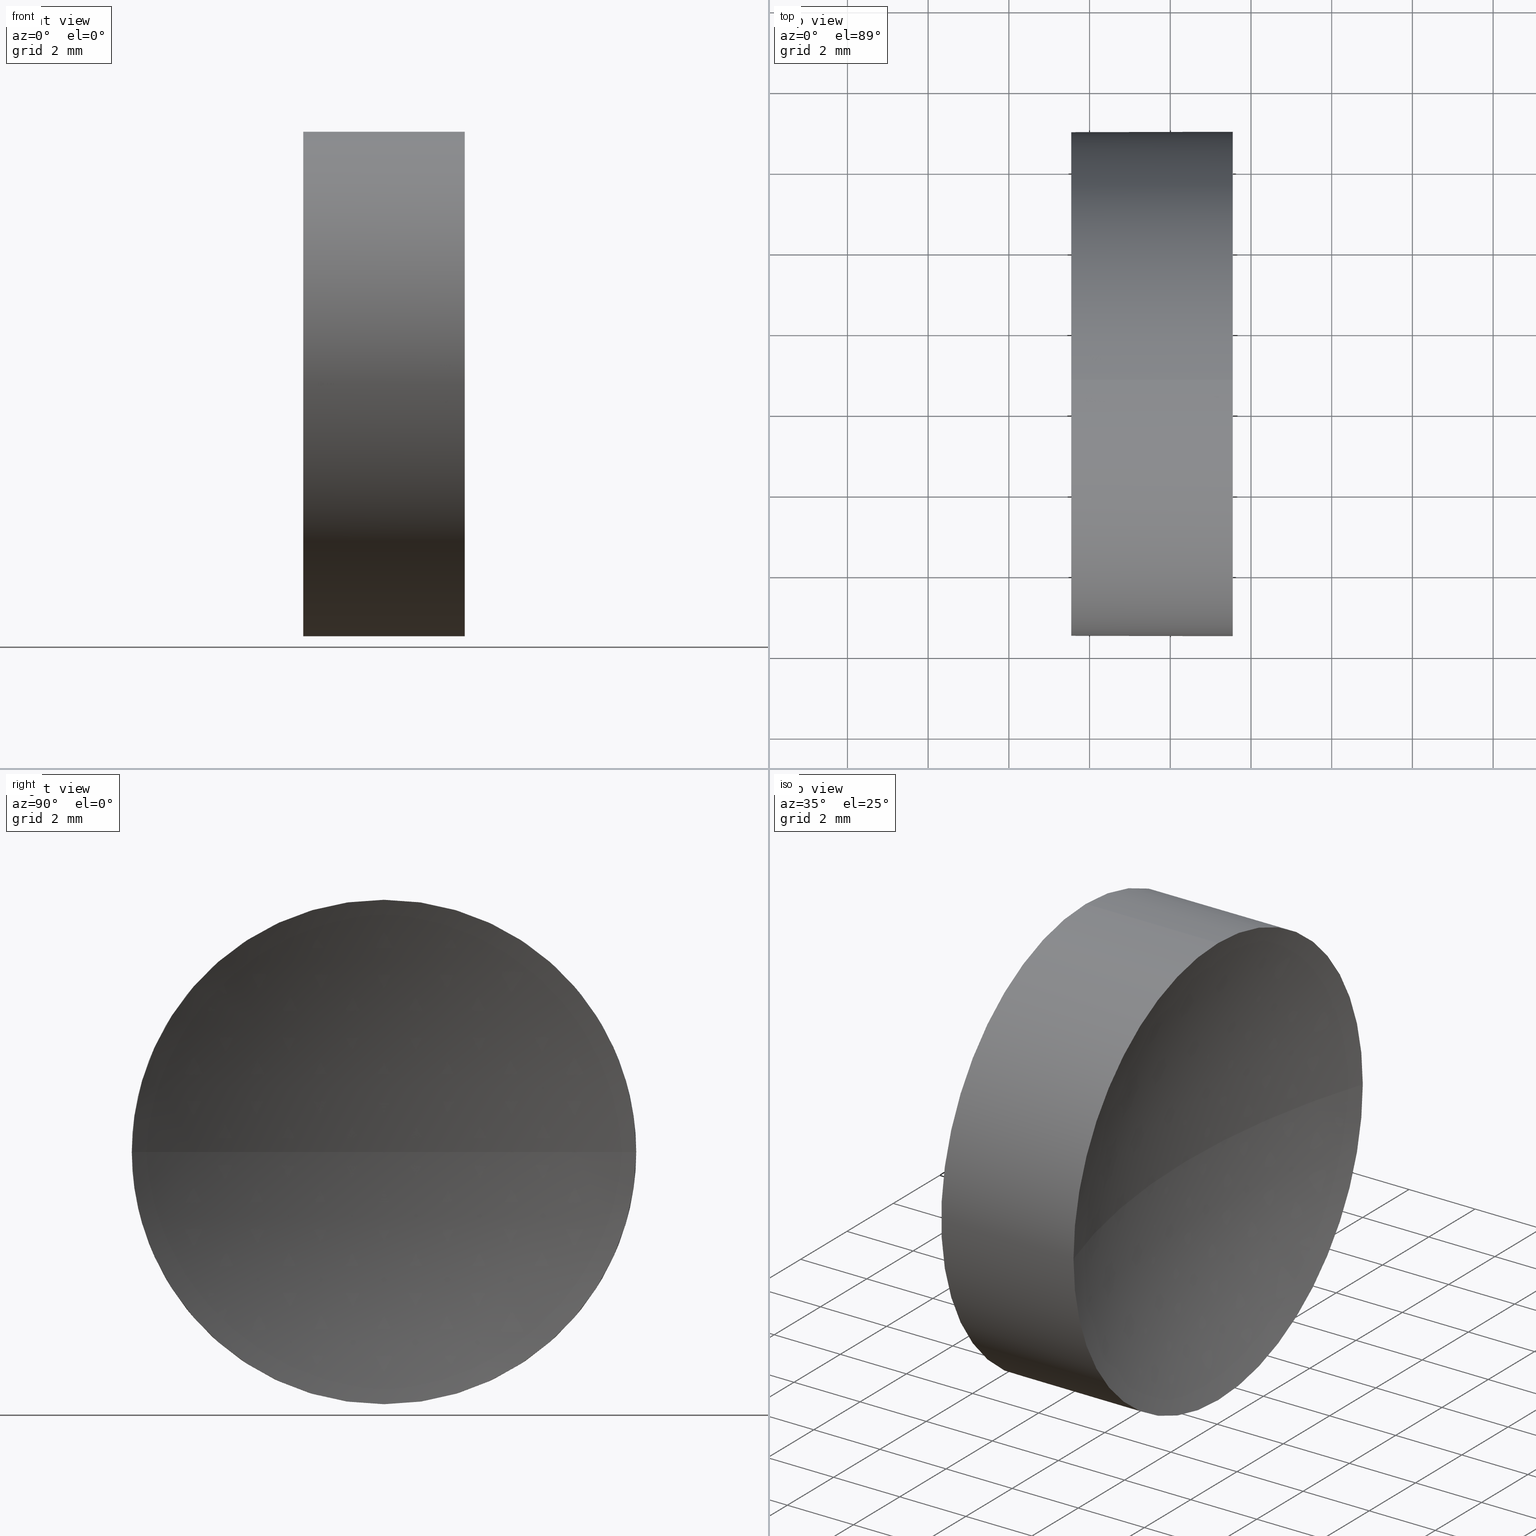
[diagram: canonical four-view strip — front | top / right | iso, engineering-drawing reading convention]
A machine part, canonical four-view strip (front | top / right | iso — engineering-drawing reading convention). The complete STEP part file that produces these views, byte-faithful:
ISO-10303-21;
HEADER;
FILE_DESCRIPTION (( 'STEP AP214' ),
    '1' );
FILE_NAME ('270001.STEP',
    '2019-07-22T01:37:34',
    ( '' ),
    ( '' ),
    'SwSTEP 2.0',
    'SolidWorks 2016',
    '' );
FILE_SCHEMA (( 'AUTOMOTIVE_DESIGN' ));
ENDSEC;

DATA;
#1 = PRODUCT_DEFINITION_FORMATION_WITH_SPECIFIED_SOURCE ( '�κ�', '', #89, .NOT_KNOWN. ) ;
#2 = EDGE_CURVE ( 'NONE', #68, #51, #142, .T. ) ;
#3 = DIRECTION ( 'NONE',  ( -1.000000000000000000, -0.0000000000000000000, -0.0000000000000000000 ) ) ;
#4 = CARTESIAN_POINT ( 'NONE',  ( 80.54632775646548700, 34.68901056168621700, 0.0000000000000000000 ) ) ;
#5 = CARTESIAN_POINT ( 'NONE',  ( 54.49257150108255100, 34.68901056168621700, 0.0000000000000000000 ) ) ;
#6 = MECHANICAL_DESIGN_GEOMETRIC_PRESENTATION_REPRESENTATION (  '', ( #50 ), #183 ) ;
#7 = CARTESIAN_POINT ( 'NONE',  ( 54.49257150108255100, 34.68901056168621700, 6.250000000000001800 ) ) ;
#8 = FACE_OUTER_BOUND ( 'NONE', #88, .T. ) ;
#9 = PRODUCT_RELATED_PRODUCT_CATEGORY ( 'part', '', ( #89 ) ) ;
#10 = SURFACE_STYLE_FILL_AREA ( #148 ) ;
#11 = CARTESIAN_POINT ( 'NONE',  ( 54.49257150108255100, 34.68901056168621700, -6.250000000000001800 ) ) ;
#12 = CIRCLE ( 'NONE', #170, 20.00000000000000400 ) ;
#13 =( NAMED_UNIT ( * ) PLANE_ANGLE_UNIT ( ) SI_UNIT ( $, .RADIAN. ) );
#14 = SURFACE_STYLE_USAGE ( .BOTH. , #169 ) ;
#15 = ADVANCED_FACE ( 'NONE', ( #92 ), #122, .T. ) ;
#16 = AXIS2_PLACEMENT_3D ( 'NONE', #5, #133, #176 ) ;
#17 = ORIENTED_EDGE ( 'NONE', *, *, #81, .T. ) ;
#18 = DIRECTION ( 'NONE',  ( 0.0000000000000000000, 0.0000000000000000000, 1.000000000000000000 ) ) ;
#19 = CARTESIAN_POINT ( 'NONE',  ( 61.54797256450216000, 28.43901056168620700, 0.0000000000000000000 ) ) ;
#20 = DIRECTION ( 'NONE',  ( 0.0000000000000000000, -1.000000000000000000, -1.224646799147353200E-016 ) ) ;
#21 = DIRECTION ( 'NONE',  ( -1.000000000000000000, -0.0000000000000000000, -0.0000000000000000000 ) ) ;
#22 = DIRECTION ( 'NONE',  ( 0.0000000000000000000, -1.000000000000000000, 0.0000000000000000000 ) ) ;
#23 = CARTESIAN_POINT ( 'NONE',  ( 57.54632776745975800, 34.68901056168621700, 0.0000000000000000000 ) ) ;
#24 = ORIENTED_EDGE ( 'NONE', *, *, #76, .T. ) ;
#25 = MANIFOLD_SOLID_BREP ( '��ת1', #134 ) ;
#26 = APPLICATION_PROTOCOL_DEFINITION ( 'draft international standard', 'automotive_design', 1998, #27 ) ;
#27 = APPLICATION_CONTEXT ( 'automotive_design' ) ;
#28 = CIRCLE ( 'NONE', #154, 6.249999999999998200 ) ;
#29 = ADVANCED_FACE ( 'NONE', ( #98 ), #167, .F. ) ;
#30 = COLOUR_RGB ( '',1.000000000000000000, 1.000000000000000000, 1.000000000000000000 ) ;
#31 = EDGE_CURVE ( 'NONE', #128, #184, #28, .T. ) ;
#32 = SHAPE_DEFINITION_REPRESENTATION ( #136, #108 ) ;
#33 =( NAMED_UNIT ( * ) SI_UNIT ( $, .STERADIAN. ) SOLID_ANGLE_UNIT ( ) );
#34 = SPHERICAL_SURFACE ( 'NONE', #78, 20.00000000000000400 ) ;
#35 = DIRECTION ( 'NONE',  ( 0.0000000000000000000, 0.0000000000000000000, -1.000000000000000000 ) ) ;
#36 = CARTESIAN_POINT ( 'NONE',  ( 61.54797256450216000, 34.68901056168621700, 6.250000000000004400 ) ) ;
#37 = ORIENTED_EDGE ( 'NONE', *, *, #152, .F. ) ;
#38 = DIRECTION ( 'NONE',  ( 0.0000000000000000000, 0.0000000000000000000, 1.000000000000000000 ) ) ;
#39 = EDGE_LOOP ( 'NONE', ( #135, #72, #37, #165, #63 ) ) ;
#40 = EDGE_CURVE ( 'NONE', #51, #184, #105, .T. ) ;
#41 = DIRECTION ( 'NONE',  ( 0.0000000000000000000, 0.0000000000000000000, 1.000000000000000000 ) ) ;
#42 = ADVANCED_FACE ( 'NONE', ( #126 ), #34, .F. ) ;
#43 = ORIENTED_EDGE ( 'NONE', *, *, #81, .F. ) ;
#44 = AXIS2_PLACEMENT_3D ( 'NONE', #114, #141, #86 ) ;
#45 = DIRECTION ( 'NONE',  ( -1.000000000000000000, -0.0000000000000000000, -0.0000000000000000000 ) ) ;
#46 = COLOUR_RGB ( '',1.000000000000000000, 1.000000000000000000, 1.000000000000000000 ) ;
#47 = CARTESIAN_POINT ( 'NONE',  ( 61.54797256450216000, 34.68901056168621700, 0.0000000000000000000 ) ) ;
#48 = DIRECTION ( 'NONE',  ( 0.0000000000000000000, 0.0000000000000000000, 1.000000000000000000 ) ) ;
#49 = CARTESIAN_POINT ( 'NONE',  ( 57.54632776745975800, 34.68901056168621700, 0.0000000000000000000 ) ) ;
#50 = STYLED_ITEM ( 'NONE', ( #180 ), #25 ) ;
#51 = VERTEX_POINT ( 'NONE', #36 ) ;
#52 = AXIS2_PLACEMENT_3D ( 'NONE', #47, #3, #151 ) ;
#53 = ORIENTED_EDGE ( 'NONE', *, *, #31, .T. ) ;
#54 = PRESENTATION_STYLE_ASSIGNMENT (( #14 ) ) ;
#55 = PRODUCT_DEFINITION_CONTEXT ( 'detailed design', #27, 'design' ) ;
#56 = DIRECTION ( 'NONE',  ( -1.000000000000000000, -0.0000000000000000000, -0.0000000000000000000 ) ) ;
#57 = CARTESIAN_POINT ( 'NONE',  ( 57.54632776745975800, 34.68901056168621700, 6.249999999999998200 ) ) ;
#58 = ORIENTED_EDGE ( 'NONE', *, *, #40, .T. ) ;
#59 =( GEOMETRIC_REPRESENTATION_CONTEXT ( 3 ) GLOBAL_UNCERTAINTY_ASSIGNED_CONTEXT ( ( #111 ) ) GLOBAL_UNIT_ASSIGNED_CONTEXT ( ( #129, #158, #139 ) ) REPRESENTATION_CONTEXT ( 'NONE', 'WORKASPACE' ) );
#60 = PRESENTATION_LAYER_ASSIGNMENT (  '', '', ( #50 ) ) ;
#61 = CARTESIAN_POINT ( 'NONE',  ( 61.54797256450216000, 34.68901056168621700, -6.250000000000004400 ) ) ;
#62 = CARTESIAN_POINT ( 'NONE',  ( 61.54797256450216000, 40.93901056168623100, 7.654042494670971400E-016 ) ) ;
#63 = ORIENTED_EDGE ( 'NONE', *, *, #124, .T. ) ;
#64 = DIRECTION ( 'NONE',  ( -1.000000000000000000, 0.0000000000000000000, 0.0000000000000000000 ) ) ;
#65 = AXIS2_PLACEMENT_3D ( 'NONE', #49, #181, #153 ) ;
#66 = ORIENTED_EDGE ( 'NONE', *, *, #152, .T. ) ;
#67 = CARTESIAN_POINT ( 'NONE',  ( 61.54797256450216000, 34.68901056168621700, 0.0000000000000000000 ) ) ;
#68 = VERTEX_POINT ( 'NONE', #19 ) ;
#69 = PRESENTATION_LAYER_ASSIGNMENT (  '', '', ( #147 ) ) ;
#70 = ORIENTED_EDGE ( 'NONE', *, *, #99, .F. ) ;
#71 = DIRECTION ( 'NONE',  ( -1.000000000000000000, -0.0000000000000000000, -0.0000000000000000000 ) ) ;
#72 = ORIENTED_EDGE ( 'NONE', *, *, #179, .T. ) ;
#73 = DIRECTION ( 'NONE',  ( 0.0000000000000000000, 0.0000000000000000000, 1.000000000000000000 ) ) ;
#74 = VECTOR ( 'NONE', #56, 1000.000000000000000 ) ;
#75 = FILL_AREA_STYLE_COLOUR ( '', #30 ) ;
#76 = EDGE_CURVE ( 'NONE', #97, #110, #12, .T. ) ;
#77 = ORIENTED_EDGE ( 'NONE', *, *, #2, .F. ) ;
#78 = AXIS2_PLACEMENT_3D ( 'NONE', #93, #121, #146 ) ;
#79 = DIRECTION ( 'NONE',  ( -1.000000000000000000, -0.0000000000000000000, -0.0000000000000000000 ) ) ;
#80 = CYLINDRICAL_SURFACE ( 'NONE', #44, 6.250000000000001800 ) ;
#81 = EDGE_CURVE ( 'NONE', #68, #110, #160, .T. ) ;
#82 =( NAMED_UNIT ( * ) SI_UNIT ( $, .STERADIAN. ) SOLID_ANGLE_UNIT ( ) );
#83 = AXIS2_PLACEMENT_3D ( 'NONE', #4, #35, #64 ) ;
#84 = FILL_AREA_STYLE ('',( #75 ) ) ;
#85 = CIRCLE ( 'NONE', #103, 6.250000000000005300 ) ;
#86 = DIRECTION ( 'NONE',  ( 0.0000000000000000000, 0.0000000000000000000, 1.000000000000000000 ) ) ;
#87 = PRODUCT_DEFINITION ( 'δ֪', '', #1, #55 ) ;
#88 = EDGE_LOOP ( 'NONE', ( #66, #53 ) ) ;
#89 = PRODUCT ( '270001', '270001', '', ( #115 ) ) ;
#90 = CARTESIAN_POINT ( 'NONE',  ( 57.54632776745975800, 34.68901056168621700, 0.0000000000000000000 ) ) ;
#91 = CARTESIAN_POINT ( 'NONE',  ( 60.54632775646548700, 34.68901056168621700, 0.0000000000000000000 ) ) ;
#92 = FACE_OUTER_BOUND ( 'NONE', #39, .T. ) ;
#93 = CARTESIAN_POINT ( 'NONE',  ( 80.54632775646548700, 34.68901056168621700, 0.0000000000000000000 ) ) ;
#94 = DIRECTION ( 'NONE',  ( 0.0000000000000000000, 0.0000000000000000000, 1.000000000000000000 ) ) ;
#95 = PLANE ( 'NONE',  #65 ) ;
#96 = LINE ( 'NONE', #11, #74 ) ;
#97 = VERTEX_POINT ( 'NONE', #62 ) ;
#98 = FACE_OUTER_BOUND ( 'NONE', #116, .T. ) ;
#99 = EDGE_CURVE ( 'NONE', #127, #68, #85, .T. ) ;
#100 = APPLICATION_CONTEXT ( 'automotive_design' ) ;
#101 = ORIENTED_EDGE ( 'NONE', *, *, #124, .F. ) ;
#102 = ORIENTED_EDGE ( 'NONE', *, *, #76, .F. ) ;
#103 = AXIS2_PLACEMENT_3D ( 'NONE', #150, #163, #18 ) ;
#104 = CARTESIAN_POINT ( 'NONE',  ( 80.54632775646548700, 34.68901056168621700, 0.0000000000000000000 ) ) ;
#105 = LINE ( 'NONE', #7, #177 ) ;
#106 = DIRECTION ( 'NONE',  ( 0.0000000000000000000, -1.224646799147353200E-016, 1.000000000000000000 ) ) ;
#107 = CARTESIAN_POINT ( 'NONE',  ( 80.54632775646548700, 34.68901056168621700, 0.0000000000000000000 ) ) ;
#108 = ADVANCED_BREP_SHAPE_REPRESENTATION ( '270001', ( #25, #130 ), #59 ) ;
#109 = ORIENTED_EDGE ( 'NONE', *, *, #2, .T. ) ;
#110 = VERTEX_POINT ( 'NONE', #91 ) ;
#111 = UNCERTAINTY_MEASURE_WITH_UNIT (LENGTH_MEASURE( 1.000000000000000100E-005 ), #129, 'distance_accuracy_value', 'NONE');
#112 = FACE_OUTER_BOUND ( 'NONE', #155, .T. ) ;
#113 = AXIS2_PLACEMENT_3D ( 'NONE', #23, #178, #125 ) ;
#114 = CARTESIAN_POINT ( 'NONE',  ( 54.49257150108255100, 34.68901056168621700, 0.0000000000000000000 ) ) ;
#115 = PRODUCT_CONTEXT ( 'NONE', #100, 'mechanical' ) ;
#116 = EDGE_LOOP ( 'NONE', ( #102, #101, #77, #17 ) ) ;
#117 = SURFACE_STYLE_FILL_AREA ( #84 ) ;
#118 = UNCERTAINTY_MEASURE_WITH_UNIT (LENGTH_MEASURE( 1.000000000000000100E-005 ), #185, 'distance_accuracy_value', 'NONE');
#119 = CARTESIAN_POINT ( 'NONE',  ( 61.54797256450216000, 34.68901056168621700, 0.0000000000000000000 ) ) ;
#120 =( LENGTH_UNIT ( ) NAMED_UNIT ( * ) SI_UNIT ( .MILLI., .METRE. ) );
#121 = DIRECTION ( 'NONE',  ( 0.0000000000000000000, 0.0000000000000000000, 1.000000000000000000 ) ) ;
#122 = CYLINDRICAL_SURFACE ( 'NONE', #16, 6.250000000000001800 ) ;
#123 =( NAMED_UNIT ( * ) PLANE_ANGLE_UNIT ( ) SI_UNIT ( $, .RADIAN. ) );
#124 = EDGE_CURVE ( 'NONE', #51, #97, #157, .T. ) ;
#125 = DIRECTION ( 'NONE',  ( 0.0000000000000000000, 0.0000000000000000000, 1.000000000000000000 ) ) ;
#126 = FACE_OUTER_BOUND ( 'NONE', #172, .T. ) ;
#127 = VERTEX_POINT ( 'NONE', #61 ) ;
#128 = VERTEX_POINT ( 'NONE', #161 ) ;
#129 =( LENGTH_UNIT ( ) NAMED_UNIT ( * ) SI_UNIT ( .MILLI., .METRE. ) );
#130 = AXIS2_PLACEMENT_3D ( 'NONE', #186, #73, #171 ) ;
#131 = CIRCLE ( 'NONE', #113, 6.249999999999998200 ) ;
#132 = AXIS2_PLACEMENT_3D ( 'NONE', #119, #71, #41 ) ;
#133 = DIRECTION ( 'NONE',  ( -1.000000000000000000, -0.0000000000000000000, -0.0000000000000000000 ) ) ;
#134 = CLOSED_SHELL ( 'NONE', ( #15, #42, #29, #173, #143 ) ) ;
#135 = ORIENTED_EDGE ( 'NONE', *, *, #168, .T. ) ;
#136 = PRODUCT_DEFINITION_SHAPE ( 'NONE', 'NONE',  #87 ) ;
#137 = MECHANICAL_DESIGN_GEOMETRIC_PRESENTATION_REPRESENTATION (  '', ( #147 ), #166 ) ;
#138 = CIRCLE ( 'NONE', #132, 6.250000000000005300 ) ;
#139 =( NAMED_UNIT ( * ) SI_UNIT ( $, .STERADIAN. ) SOLID_ANGLE_UNIT ( ) );
#140 = AXIS2_PLACEMENT_3D ( 'NONE', #107, #94, #22 ) ;
#141 = DIRECTION ( 'NONE',  ( -1.000000000000000000, -0.0000000000000000000, -0.0000000000000000000 ) ) ;
#142 = CIRCLE ( 'NONE', #52, 6.250000000000005300 ) ;
#143 = ADVANCED_FACE ( 'NONE', ( #8 ), #95, .F. ) ;
#144 = UNCERTAINTY_MEASURE_WITH_UNIT (LENGTH_MEASURE( 1.000000000000000100E-005 ), #120, 'distance_accuracy_value', 'NONE');
#145 = ORIENTED_EDGE ( 'NONE', *, *, #31, .F. ) ;
#146 = DIRECTION ( 'NONE',  ( 0.0000000000000000000, -1.000000000000000000, 0.0000000000000000000 ) ) ;
#147 = STYLED_ITEM ( 'NONE', ( #54 ), #108 ) ;
#148 = FILL_AREA_STYLE ('',( #164 ) ) ;
#149 = SURFACE_STYLE_USAGE ( .BOTH. , #175 ) ;
#150 = CARTESIAN_POINT ( 'NONE',  ( 61.54797256450216000, 34.68901056168621700, 0.0000000000000000000 ) ) ;
#151 = DIRECTION ( 'NONE',  ( 0.0000000000000000000, 0.0000000000000000000, 1.000000000000000000 ) ) ;
#152 = EDGE_CURVE ( 'NONE', #184, #128, #131, .T. ) ;
#153 = DIRECTION ( 'NONE',  ( 0.0000000000000000000, 0.0000000000000000000, -1.000000000000000000 ) ) ;
#154 = AXIS2_PLACEMENT_3D ( 'NONE', #90, #21, #48 ) ;
#155 = EDGE_LOOP ( 'NONE', ( #159, #162, #109, #58, #145 ) ) ;
#156 = APPLICATION_PROTOCOL_DEFINITION ( 'draft international standard', 'automotive_design', 1998, #100 ) ;
#157 = CIRCLE ( 'NONE', #182, 6.250000000000005300 ) ;
#158 =( NAMED_UNIT ( * ) PLANE_ANGLE_UNIT ( ) SI_UNIT ( $, .RADIAN. ) );
#159 = ORIENTED_EDGE ( 'NONE', *, *, #179, .F. ) ;
#160 = CIRCLE ( 'NONE', #83, 20.00000000000000400 ) ;
#161 = CARTESIAN_POINT ( 'NONE',  ( 57.54632776745975800, 34.68901056168621700, -6.249999999999998200 ) ) ;
#162 = ORIENTED_EDGE ( 'NONE', *, *, #99, .T. ) ;
#163 = DIRECTION ( 'NONE',  ( -1.000000000000000000, -0.0000000000000000000, -0.0000000000000000000 ) ) ;
#164 = FILL_AREA_STYLE_COLOUR ( '', #46 ) ;
#165 = ORIENTED_EDGE ( 'NONE', *, *, #40, .F. ) ;
#166 =( GEOMETRIC_REPRESENTATION_CONTEXT ( 3 ) GLOBAL_UNCERTAINTY_ASSIGNED_CONTEXT ( ( #118 ) ) GLOBAL_UNIT_ASSIGNED_CONTEXT ( ( #185, #13, #82 ) ) REPRESENTATION_CONTEXT ( 'NONE', 'WORKASPACE' ) );
#167 = SPHERICAL_SURFACE ( 'NONE', #140, 20.00000000000000400 ) ;
#168 = EDGE_CURVE ( 'NONE', #97, #127, #138, .T. ) ;
#169 = SURFACE_SIDE_STYLE ('',( #117 ) ) ;
#170 = AXIS2_PLACEMENT_3D ( 'NONE', #104, #106, #20 ) ;
#171 = DIRECTION ( 'NONE',  ( 1.000000000000000000, 0.0000000000000000000, 0.0000000000000000000 ) ) ;
#172 = EDGE_LOOP ( 'NONE', ( #174, #24, #43, #70 ) ) ;
#173 = ADVANCED_FACE ( 'NONE', ( #112 ), #80, .T. ) ;
#174 = ORIENTED_EDGE ( 'NONE', *, *, #168, .F. ) ;
#175 = SURFACE_SIDE_STYLE ('',( #10 ) ) ;
#176 = DIRECTION ( 'NONE',  ( 0.0000000000000000000, 0.0000000000000000000, 1.000000000000000000 ) ) ;
#177 = VECTOR ( 'NONE', #45, 1000.000000000000000 ) ;
#178 = DIRECTION ( 'NONE',  ( -1.000000000000000000, -0.0000000000000000000, -0.0000000000000000000 ) ) ;
#179 = EDGE_CURVE ( 'NONE', #127, #128, #96, .T. ) ;
#180 = PRESENTATION_STYLE_ASSIGNMENT (( #149 ) ) ;
#181 = DIRECTION ( 'NONE',  ( 1.000000000000000000, 0.0000000000000000000, 0.0000000000000000000 ) ) ;
#182 = AXIS2_PLACEMENT_3D ( 'NONE', #67, #79, #38 ) ;
#183 =( GEOMETRIC_REPRESENTATION_CONTEXT ( 3 ) GLOBAL_UNCERTAINTY_ASSIGNED_CONTEXT ( ( #144 ) ) GLOBAL_UNIT_ASSIGNED_CONTEXT ( ( #120, #123, #33 ) ) REPRESENTATION_CONTEXT ( 'NONE', 'WORKASPACE' ) );
#184 = VERTEX_POINT ( 'NONE', #57 ) ;
#185 =( LENGTH_UNIT ( ) NAMED_UNIT ( * ) SI_UNIT ( .MILLI., .METRE. ) );
#186 = CARTESIAN_POINT ( 'NONE',  ( 0.0000000000000000000, 0.0000000000000000000, 0.0000000000000000000 ) ) ;
ENDSEC;
END-ISO-10303-21;
